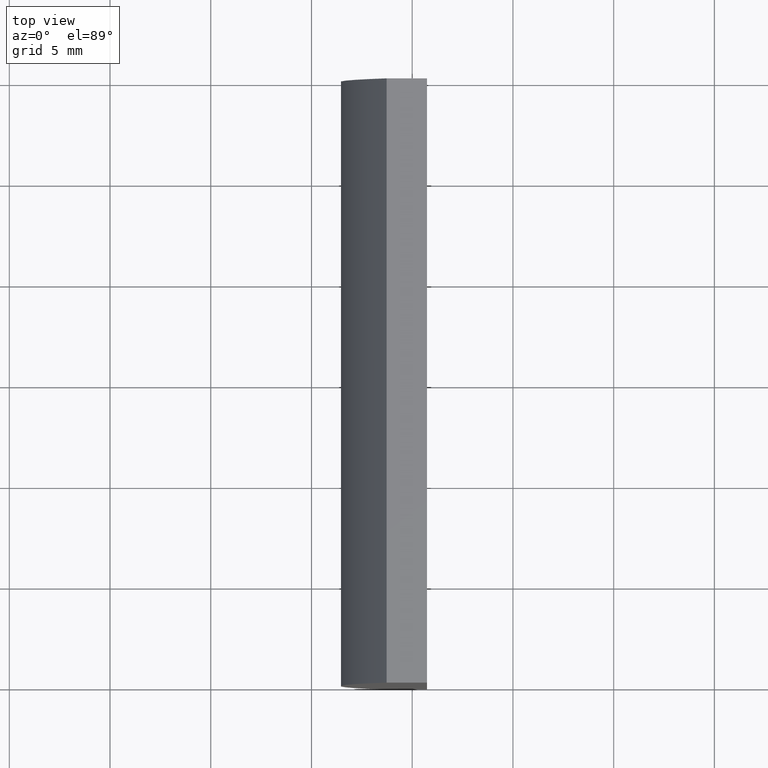
[diagram: clean part render]
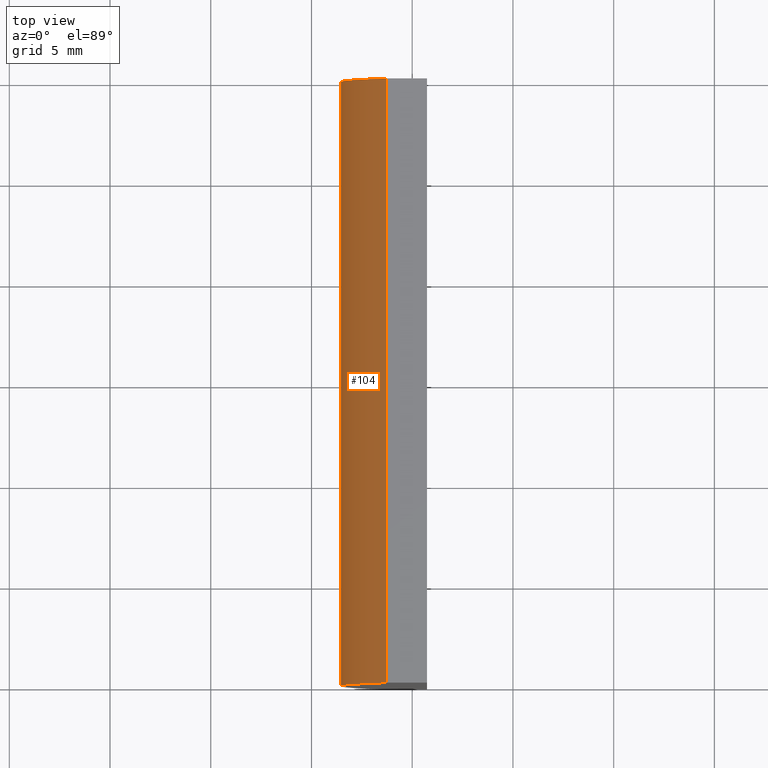
[diagram: same view with one face highlighted and labeled with its STEP entity id]
A machine part, top view. The second image highlights one B-rep face of the part: STEP entity #104.
In plain terms, the highlighted cylindrical surface (partial cylindrical patch) has radius 22.92 mm, axis along (-0, -1, -0).
Its self-contained STEP definition (entity closure, byte-faithful):
#3 = CARTESIAN_POINT ( 'NONE',  ( -16.26823863667994600, 30.00000000000000000, 10.00000000000000000 ) ) ;
#6 = LINE ( 'NONE', #158, #125 ) ;
#17 = ORIENTED_EDGE ( 'NONE', *, *, #64, .T. ) ;
#34 = CIRCLE ( 'NONE', #177, 22.92000000000000200 ) ;
#35 = CARTESIAN_POINT ( 'NONE',  ( 4.355204334851265500, 0.0000000000000000000, 4.286263797015675000E-017 ) ) ;
#37 = VECTOR ( 'NONE', #148, 1000.000000000000000 ) ;
#40 = VERTEX_POINT ( 'NONE', #3 ) ;
#41 = DIRECTION ( 'NONE',  ( 0.0000000000000000000, 1.000000000000000000, 0.0000000000000000000 ) ) ;
#42 = EDGE_CURVE ( 'NONE', #53, #44, #34, .T. ) ;
#43 = EDGE_LOOP ( 'NONE', ( #189, #179, #55, #17 ) ) ;
#44 = VERTEX_POINT ( 'NONE', #119 ) ;
#48 = DIRECTION ( 'NONE',  ( 0.0000000000000000000, 0.0000000000000000000, 1.000000000000000000 ) ) ;
#53 = VERTEX_POINT ( 'NONE', #153 ) ;
#55 = ORIENTED_EDGE ( 'NONE', *, *, #127, .F. ) ;
#61 = EDGE_CURVE ( 'NONE', #40, #44, #6, .T. ) ;
#63 = DIRECTION ( 'NONE',  ( -0.0000000000000000000, -1.000000000000000000, -0.0000000000000000000 ) ) ;
#64 = EDGE_CURVE ( 'NONE', #118, #53, #92, .T. ) ;
#68 = AXIS2_PLACEMENT_3D ( 'NONE', #95, #63, #138 ) ;
#91 = DIRECTION ( 'NONE',  ( 0.0000000000000000000, 1.000000000000000000, 0.0000000000000000000 ) ) ;
#92 = LINE ( 'NONE', #144, #37 ) ;
#95 = CARTESIAN_POINT ( 'NONE',  ( 4.355204334851265500, 30.00000000000000000, 4.286263797015675000E-017 ) ) ;
#102 = CARTESIAN_POINT ( 'NONE',  ( -16.26823863667994600, 30.00000000000000000, -10.00000000000000000 ) ) ;
#104 = ADVANCED_FACE ( 'NONE', ( #175 ), #200, .T. ) ;
#109 = AXIS2_PLACEMENT_3D ( 'NONE', #139, #91, #123 ) ;
#118 = VERTEX_POINT ( 'NONE', #102 ) ;
#119 = CARTESIAN_POINT ( 'NONE',  ( -16.26823863667994600, 0.0000000000000000000, 10.00000000000000000 ) ) ;
#123 = DIRECTION ( 'NONE',  ( 0.0000000000000000000, 0.0000000000000000000, 1.000000000000000000 ) ) ;
#125 = VECTOR ( 'NONE', #162, 1000.000000000000000 ) ;
#127 = EDGE_CURVE ( 'NONE', #118, #40, #156, .T. ) ;
#138 = DIRECTION ( 'NONE',  ( 0.0000000000000000000, 0.0000000000000000000, -1.000000000000000000 ) ) ;
#139 = CARTESIAN_POINT ( 'NONE',  ( 4.355204334851265500, 30.00000000000000000, 4.286263797015675000E-017 ) ) ;
#144 = CARTESIAN_POINT ( 'NONE',  ( -16.26823863667994600, 30.00000000000000000, -10.00000000000000000 ) ) ;
#148 = DIRECTION ( 'NONE',  ( -0.0000000000000000000, -1.000000000000000000, -0.0000000000000000000 ) ) ;
#153 = CARTESIAN_POINT ( 'NONE',  ( -16.26823863667994600, 0.0000000000000000000, -10.00000000000000000 ) ) ;
#156 = CIRCLE ( 'NONE', #109, 22.92000000000000200 ) ;
#158 = CARTESIAN_POINT ( 'NONE',  ( -16.26823863667994600, 30.00000000000000000, 10.00000000000000000 ) ) ;
#162 = DIRECTION ( 'NONE',  ( -0.0000000000000000000, -1.000000000000000000, -0.0000000000000000000 ) ) ;
#175 = FACE_OUTER_BOUND ( 'NONE', #43, .T. ) ;
#177 = AXIS2_PLACEMENT_3D ( 'NONE', #35, #41, #48 ) ;
#179 = ORIENTED_EDGE ( 'NONE', *, *, #61, .F. ) ;
#189 = ORIENTED_EDGE ( 'NONE', *, *, #42, .T. ) ;
#200 = CYLINDRICAL_SURFACE ( 'NONE', #68, 22.92000000000000200 ) ;